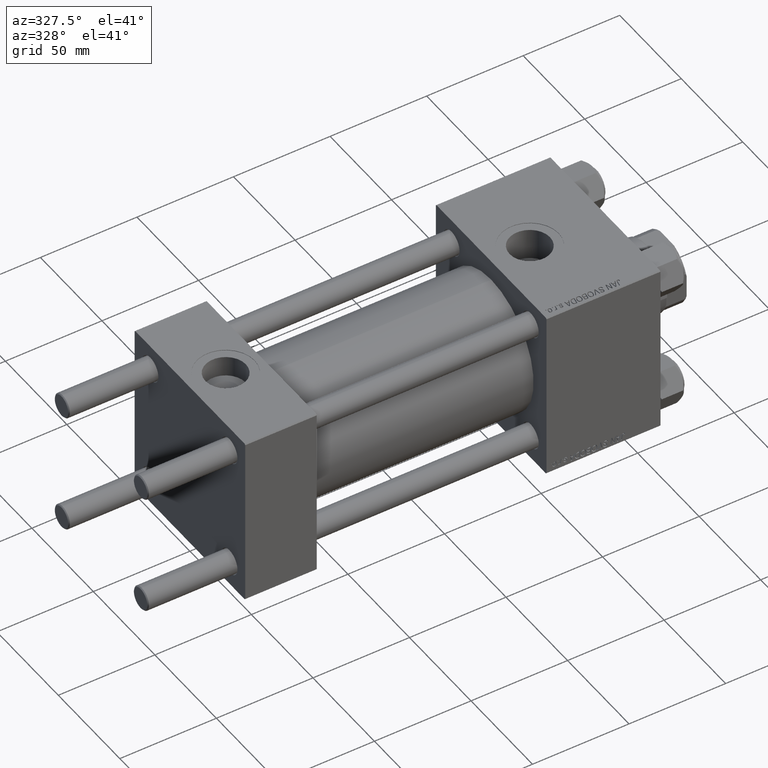
[diagram: clean part render]
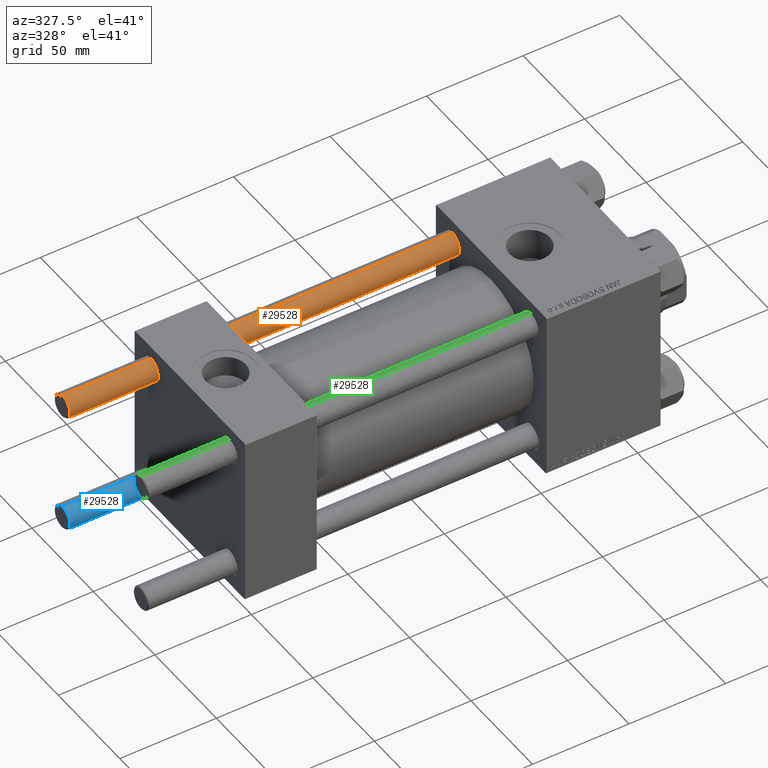
[diagram: same view with three faces highlighted in distinct colors, each labeled with its STEP entity id]
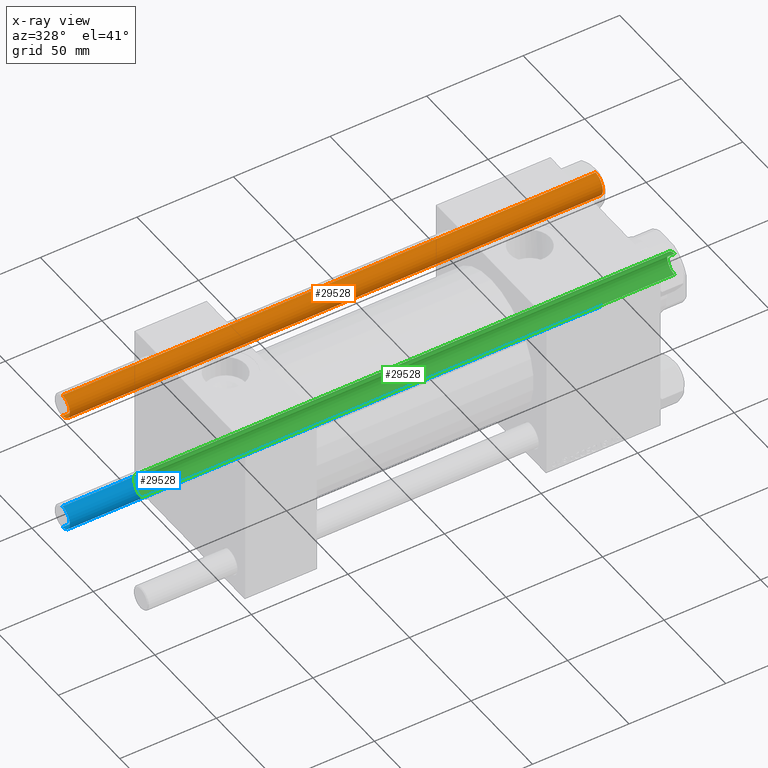
[diagram: x-ray of the same camera — body ghosted, the three highlighted faces saturated]
A machine part, auxiliary view with three faces highlighted in distinct colors.
The next image is the same camera in x-ray (body ghosted, the three faces saturated) — at least one of them is partly hidden behind the body in this view.
Their STEP definitions:

[orange] entity #29528 — the highlighted cylindrical surface (edge-blend (fillet) strip) has radius 6 mm, axis along (-1, -0, -0).
#1568 = DIRECTION ( 'NONE',  ( -0.000000000000000000, -0.000000000000000000, -1.000000000000000000 ) ) ;
#4556 = VERTEX_POINT ( 'NONE', #17876 ) ;
#4809 = DIRECTION ( 'NONE',  ( 1.000000000000000000, 0.000000000000000000, 0.000000000000000000 ) ) ;
#5543 = LINE ( 'NONE', #20950, #20584 ) ;
#5793 = DIRECTION ( 'NONE',  ( -0.000000000000000000, -0.000000000000000000, -1.000000000000000000 ) ) ;
#6253 = EDGE_CURVE ( 'NONE', #37352, #32741, #12943, .T. ) ;
#7242 = EDGE_LOOP ( 'NONE', ( #34668, #39708, #37871, #13170 ) ) ;
#8065 = EDGE_CURVE ( 'NONE', #4556, #32741, #28602, .T. ) ;
#8591 = CARTESIAN_POINT ( 'NONE',  ( 0.000000000000000000, 0.000000000000000000, 276.5000000000000000 ) ) ;
#8890 = CARTESIAN_POINT ( 'NONE',  ( 6.000000000000000888, 7.347880794884120722E-16, 277.0000000000000000 ) ) ;
#12622 = DIRECTION ( 'NONE',  ( 0.000000000000000000, 0.000000000000000000, -1.000000000000000000 ) ) ;
#12943 = CIRCLE ( 'NONE', #19407, 6.000000000000000888 ) ;
#13170 = ORIENTED_EDGE ( 'NONE', *, *, #6253, .T. ) ;
#15572 = CARTESIAN_POINT ( 'NONE',  ( 6.000000000000000888, 7.347880794884120722E-16, 0.5000000000000559552 ) ) ;
#16361 = DIRECTION ( 'NONE',  ( -0.000000000000000000, -0.000000000000000000, -1.000000000000000000 ) ) ;
#17876 = CARTESIAN_POINT ( 'NONE',  ( 6.000000000000000888, 7.347880794884120722E-16, 276.5000000000000000 ) ) ;
#19407 = AXIS2_PLACEMENT_3D ( 'NONE', #32057, #28275, #34855 ) ;
#19470 = EDGE_CURVE ( 'NONE', #27429, #37352, #5543, .T. ) ;
#19661 = CARTESIAN_POINT ( 'NONE',  ( 0.000000000000000000, 0.000000000000000000, 277.0000000000000000 ) ) ;
#20584 = VECTOR ( 'NONE', #5793, 1000.000000000000000 ) ;
#20950 = CARTESIAN_POINT ( 'NONE',  ( -6.000000000000000888, 0.000000000000000000, 277.0000000000000000 ) ) ;
#21413 = CARTESIAN_POINT ( 'NONE',  ( -6.000000000000000888, 0.000000000000000000, 276.5000000000000000 ) ) ;
#22296 = AXIS2_PLACEMENT_3D ( 'NONE', #8591, #12622, #4809 ) ;
#22849 = AXIS2_PLACEMENT_3D ( 'NONE', #19661, #16361, #31774 ) ;
#23461 = FACE_OUTER_BOUND ( 'NONE', #7242, .T. ) ;
#27429 = VERTEX_POINT ( 'NONE', #21413 ) ;
#27488 = VECTOR ( 'NONE', #1568, 1000.000000000000000 ) ;
#28275 = DIRECTION ( 'NONE',  ( -0.000000000000000000, -0.000000000000000000, 1.000000000000000000 ) ) ;
#28602 = LINE ( 'NONE', #8890, #27488 ) ;
#29528 = ADVANCED_FACE ( 'NONE', ( #23461 ), #35565, .T. ) ;
#31774 = DIRECTION ( 'NONE',  ( -1.000000000000000000, 0.000000000000000000, 0.000000000000000000 ) ) ;
#32057 = CARTESIAN_POINT ( 'NONE',  ( 0.000000000000000000, 0.000000000000000000, 0.5000000000000559552 ) ) ;
#32741 = VERTEX_POINT ( 'NONE', #15572 ) ;
#34668 = ORIENTED_EDGE ( 'NONE', *, *, #8065, .F. ) ;
#34855 = DIRECTION ( 'NONE',  ( 1.000000000000000000, 0.000000000000000000, 0.000000000000000000 ) ) ;
#35194 = CARTESIAN_POINT ( 'NONE',  ( -6.000000000000000888, 0.000000000000000000, 0.5000000000000559552 ) ) ;
#35565 = CYLINDRICAL_SURFACE ( 'NONE', #22849, 6.000000000000000888 ) ;
#36712 = CIRCLE ( 'NONE', #22296, 6.000000000000000888 ) ;
#36912 = EDGE_CURVE ( 'NONE', #4556, #27429, #36712, .T. ) ;
#37352 = VERTEX_POINT ( 'NONE', #35194 ) ;
#37871 = ORIENTED_EDGE ( 'NONE', *, *, #19470, .T. ) ;
#39708 = ORIENTED_EDGE ( 'NONE', *, *, #36912, .T. ) ;

[blue] entity #29528 — the highlighted cylindrical surface (edge-blend (fillet) strip) has radius 6 mm, axis along (1, 0, -0).
#1568 = DIRECTION ( 'NONE',  ( -0.000000000000000000, -0.000000000000000000, -1.000000000000000000 ) ) ;
#4556 = VERTEX_POINT ( 'NONE', #17876 ) ;
#4809 = DIRECTION ( 'NONE',  ( 1.000000000000000000, 0.000000000000000000, 0.000000000000000000 ) ) ;
#5543 = LINE ( 'NONE', #20950, #20584 ) ;
#5793 = DIRECTION ( 'NONE',  ( -0.000000000000000000, -0.000000000000000000, -1.000000000000000000 ) ) ;
#6253 = EDGE_CURVE ( 'NONE', #37352, #32741, #12943, .T. ) ;
#7242 = EDGE_LOOP ( 'NONE', ( #34668, #39708, #37871, #13170 ) ) ;
#8065 = EDGE_CURVE ( 'NONE', #4556, #32741, #28602, .T. ) ;
#8591 = CARTESIAN_POINT ( 'NONE',  ( 0.000000000000000000, 0.000000000000000000, 276.5000000000000000 ) ) ;
#8890 = CARTESIAN_POINT ( 'NONE',  ( 6.000000000000000888, 7.347880794884120722E-16, 277.0000000000000000 ) ) ;
#12622 = DIRECTION ( 'NONE',  ( 0.000000000000000000, 0.000000000000000000, -1.000000000000000000 ) ) ;
#12943 = CIRCLE ( 'NONE', #19407, 6.000000000000000888 ) ;
#13170 = ORIENTED_EDGE ( 'NONE', *, *, #6253, .T. ) ;
#15572 = CARTESIAN_POINT ( 'NONE',  ( 6.000000000000000888, 7.347880794884120722E-16, 0.5000000000000559552 ) ) ;
#16361 = DIRECTION ( 'NONE',  ( -0.000000000000000000, -0.000000000000000000, -1.000000000000000000 ) ) ;
#17876 = CARTESIAN_POINT ( 'NONE',  ( 6.000000000000000888, 7.347880794884120722E-16, 276.5000000000000000 ) ) ;
#19407 = AXIS2_PLACEMENT_3D ( 'NONE', #32057, #28275, #34855 ) ;
#19470 = EDGE_CURVE ( 'NONE', #27429, #37352, #5543, .T. ) ;
#19661 = CARTESIAN_POINT ( 'NONE',  ( 0.000000000000000000, 0.000000000000000000, 277.0000000000000000 ) ) ;
#20584 = VECTOR ( 'NONE', #5793, 1000.000000000000000 ) ;
#20950 = CARTESIAN_POINT ( 'NONE',  ( -6.000000000000000888, 0.000000000000000000, 277.0000000000000000 ) ) ;
#21413 = CARTESIAN_POINT ( 'NONE',  ( -6.000000000000000888, 0.000000000000000000, 276.5000000000000000 ) ) ;
#22296 = AXIS2_PLACEMENT_3D ( 'NONE', #8591, #12622, #4809 ) ;
#22849 = AXIS2_PLACEMENT_3D ( 'NONE', #19661, #16361, #31774 ) ;
#23461 = FACE_OUTER_BOUND ( 'NONE', #7242, .T. ) ;
#27429 = VERTEX_POINT ( 'NONE', #21413 ) ;
#27488 = VECTOR ( 'NONE', #1568, 1000.000000000000000 ) ;
#28275 = DIRECTION ( 'NONE',  ( -0.000000000000000000, -0.000000000000000000, 1.000000000000000000 ) ) ;
#28602 = LINE ( 'NONE', #8890, #27488 ) ;
#29528 = ADVANCED_FACE ( 'NONE', ( #23461 ), #35565, .T. ) ;
#31774 = DIRECTION ( 'NONE',  ( -1.000000000000000000, 0.000000000000000000, 0.000000000000000000 ) ) ;
#32057 = CARTESIAN_POINT ( 'NONE',  ( 0.000000000000000000, 0.000000000000000000, 0.5000000000000559552 ) ) ;
#32741 = VERTEX_POINT ( 'NONE', #15572 ) ;
#34668 = ORIENTED_EDGE ( 'NONE', *, *, #8065, .F. ) ;
#34855 = DIRECTION ( 'NONE',  ( 1.000000000000000000, 0.000000000000000000, 0.000000000000000000 ) ) ;
#35194 = CARTESIAN_POINT ( 'NONE',  ( -6.000000000000000888, 0.000000000000000000, 0.5000000000000559552 ) ) ;
#35565 = CYLINDRICAL_SURFACE ( 'NONE', #22849, 6.000000000000000888 ) ;
#36712 = CIRCLE ( 'NONE', #22296, 6.000000000000000888 ) ;
#36912 = EDGE_CURVE ( 'NONE', #4556, #27429, #36712, .T. ) ;
#37352 = VERTEX_POINT ( 'NONE', #35194 ) ;
#37871 = ORIENTED_EDGE ( 'NONE', *, *, #19470, .T. ) ;
#39708 = ORIENTED_EDGE ( 'NONE', *, *, #36912, .T. ) ;

[green] entity #29528 — the highlighted cylindrical surface (edge-blend (fillet) strip) has radius 6 mm, axis along (1, -0, 0).
#1568 = DIRECTION ( 'NONE',  ( -0.000000000000000000, -0.000000000000000000, -1.000000000000000000 ) ) ;
#4556 = VERTEX_POINT ( 'NONE', #17876 ) ;
#4809 = DIRECTION ( 'NONE',  ( 1.000000000000000000, 0.000000000000000000, 0.000000000000000000 ) ) ;
#5543 = LINE ( 'NONE', #20950, #20584 ) ;
#5793 = DIRECTION ( 'NONE',  ( -0.000000000000000000, -0.000000000000000000, -1.000000000000000000 ) ) ;
#6253 = EDGE_CURVE ( 'NONE', #37352, #32741, #12943, .T. ) ;
#7242 = EDGE_LOOP ( 'NONE', ( #34668, #39708, #37871, #13170 ) ) ;
#8065 = EDGE_CURVE ( 'NONE', #4556, #32741, #28602, .T. ) ;
#8591 = CARTESIAN_POINT ( 'NONE',  ( 0.000000000000000000, 0.000000000000000000, 276.5000000000000000 ) ) ;
#8890 = CARTESIAN_POINT ( 'NONE',  ( 6.000000000000000888, 7.347880794884120722E-16, 277.0000000000000000 ) ) ;
#12622 = DIRECTION ( 'NONE',  ( 0.000000000000000000, 0.000000000000000000, -1.000000000000000000 ) ) ;
#12943 = CIRCLE ( 'NONE', #19407, 6.000000000000000888 ) ;
#13170 = ORIENTED_EDGE ( 'NONE', *, *, #6253, .T. ) ;
#15572 = CARTESIAN_POINT ( 'NONE',  ( 6.000000000000000888, 7.347880794884120722E-16, 0.5000000000000559552 ) ) ;
#16361 = DIRECTION ( 'NONE',  ( -0.000000000000000000, -0.000000000000000000, -1.000000000000000000 ) ) ;
#17876 = CARTESIAN_POINT ( 'NONE',  ( 6.000000000000000888, 7.347880794884120722E-16, 276.5000000000000000 ) ) ;
#19407 = AXIS2_PLACEMENT_3D ( 'NONE', #32057, #28275, #34855 ) ;
#19470 = EDGE_CURVE ( 'NONE', #27429, #37352, #5543, .T. ) ;
#19661 = CARTESIAN_POINT ( 'NONE',  ( 0.000000000000000000, 0.000000000000000000, 277.0000000000000000 ) ) ;
#20584 = VECTOR ( 'NONE', #5793, 1000.000000000000000 ) ;
#20950 = CARTESIAN_POINT ( 'NONE',  ( -6.000000000000000888, 0.000000000000000000, 277.0000000000000000 ) ) ;
#21413 = CARTESIAN_POINT ( 'NONE',  ( -6.000000000000000888, 0.000000000000000000, 276.5000000000000000 ) ) ;
#22296 = AXIS2_PLACEMENT_3D ( 'NONE', #8591, #12622, #4809 ) ;
#22849 = AXIS2_PLACEMENT_3D ( 'NONE', #19661, #16361, #31774 ) ;
#23461 = FACE_OUTER_BOUND ( 'NONE', #7242, .T. ) ;
#27429 = VERTEX_POINT ( 'NONE', #21413 ) ;
#27488 = VECTOR ( 'NONE', #1568, 1000.000000000000000 ) ;
#28275 = DIRECTION ( 'NONE',  ( -0.000000000000000000, -0.000000000000000000, 1.000000000000000000 ) ) ;
#28602 = LINE ( 'NONE', #8890, #27488 ) ;
#29528 = ADVANCED_FACE ( 'NONE', ( #23461 ), #35565, .T. ) ;
#31774 = DIRECTION ( 'NONE',  ( -1.000000000000000000, 0.000000000000000000, 0.000000000000000000 ) ) ;
#32057 = CARTESIAN_POINT ( 'NONE',  ( 0.000000000000000000, 0.000000000000000000, 0.5000000000000559552 ) ) ;
#32741 = VERTEX_POINT ( 'NONE', #15572 ) ;
#34668 = ORIENTED_EDGE ( 'NONE', *, *, #8065, .F. ) ;
#34855 = DIRECTION ( 'NONE',  ( 1.000000000000000000, 0.000000000000000000, 0.000000000000000000 ) ) ;
#35194 = CARTESIAN_POINT ( 'NONE',  ( -6.000000000000000888, 0.000000000000000000, 0.5000000000000559552 ) ) ;
#35565 = CYLINDRICAL_SURFACE ( 'NONE', #22849, 6.000000000000000888 ) ;
#36712 = CIRCLE ( 'NONE', #22296, 6.000000000000000888 ) ;
#36912 = EDGE_CURVE ( 'NONE', #4556, #27429, #36712, .T. ) ;
#37352 = VERTEX_POINT ( 'NONE', #35194 ) ;
#37871 = ORIENTED_EDGE ( 'NONE', *, *, #19470, .T. ) ;
#39708 = ORIENTED_EDGE ( 'NONE', *, *, #36912, .T. ) ;